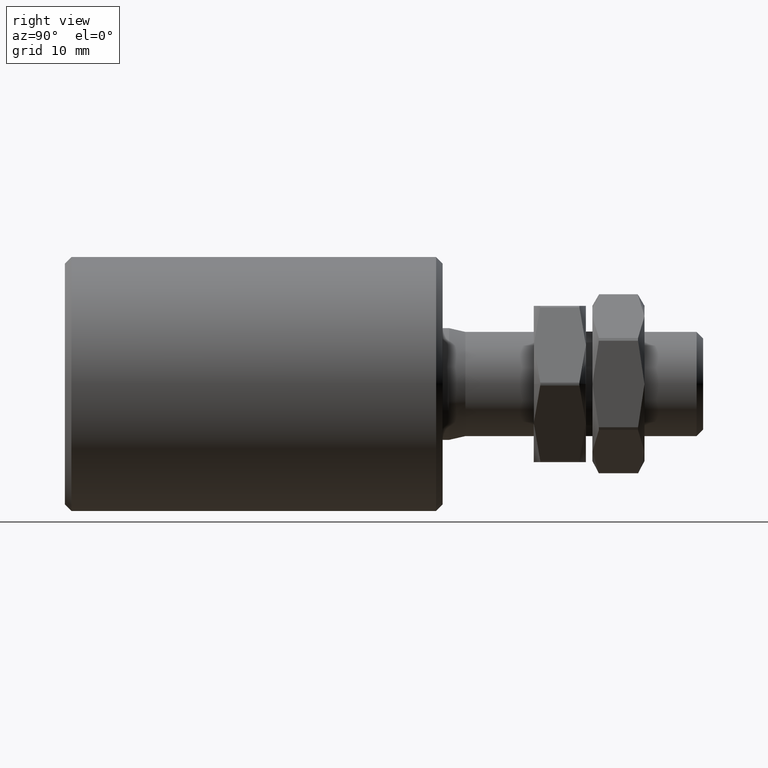
[diagram: clean part render]
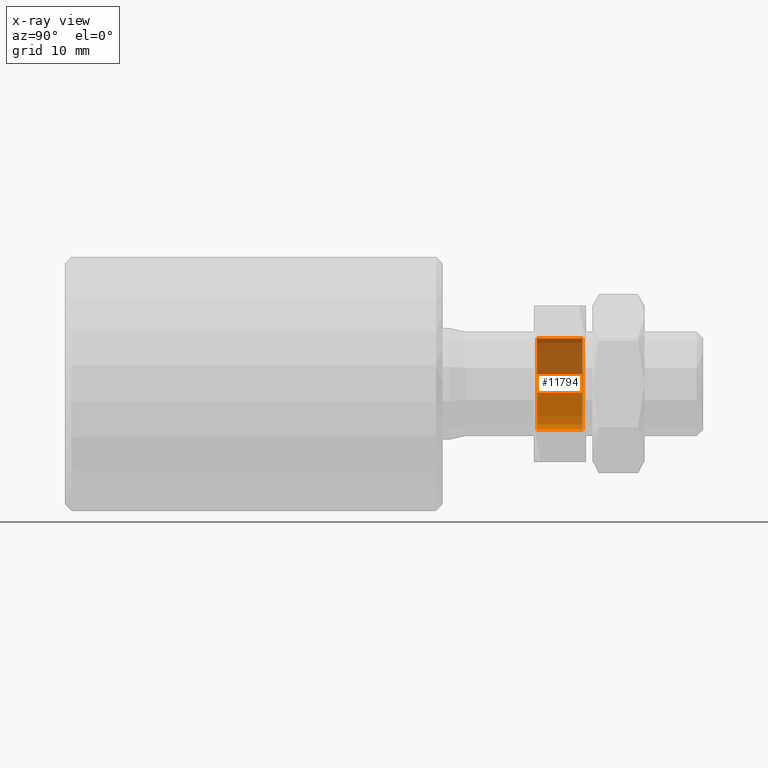
[diagram: x-ray — body ghosted, one internal face saturated and labeled with its STEP entity id]
A machine part, right view, then the same camera in x-ray: the body is ghosted and one INTERNAL B-rep face — a face not visible from any outside direction — is saturated and labeled: STEP entity #11794.
In plain terms, the highlighted cylindrical surface (partial cylindrical patch) has radius 7 mm, axis along (0, 1, 0).
Its self-contained STEP definition (entity closure, byte-faithful):
#305 = LINE ( 'NONE', #5829, #7582 ) ;
#335 = VECTOR ( 'NONE', #2855, 1000.000000000000000 ) ;
#653 = ORIENTED_EDGE ( 'NONE', *, *, #11603, .T. ) ;
#790 = AXIS2_PLACEMENT_3D ( 'NONE', #13262, #14859, #5972 ) ;
#869 = CARTESIAN_POINT ( 'NONE',  ( 0.000000000000000000, 3.500000000000000444, 7.000000000000000000 ) ) ;
#2114 = EDGE_CURVE ( 'NONE', #3408, #3210, #7398, .T. ) ;
#2279 = VERTEX_POINT ( 'NONE', #13587 ) ;
#2855 = DIRECTION ( 'NONE',  ( -0.000000000000000000, 1.000000000000000000, -0.000000000000000000 ) ) ;
#3210 = VERTEX_POINT ( 'NONE', #869 ) ;
#3407 = CIRCLE ( 'NONE', #790, 7.000000000000000000 ) ;
#3408 = VERTEX_POINT ( 'NONE', #7617 ) ;
#4662 = DIRECTION ( 'NONE',  ( -0.000000000000000000, 1.000000000000000000, -0.000000000000000000 ) ) ;
#5758 = ORIENTED_EDGE ( 'NONE', *, *, #13754, .F. ) ;
#5829 = CARTESIAN_POINT ( 'NONE',  ( 0.000000000000000000, 4.000000000000000000, 7.000000000000000000 ) ) ;
#5972 = DIRECTION ( 'NONE',  ( 0.000000000000000000, 0.000000000000000000, 1.000000000000000000 ) ) ;
#6713 = ORIENTED_EDGE ( 'NONE', *, *, #2114, .T. ) ;
#6932 = EDGE_CURVE ( 'NONE', #10618, #2279, #3407, .T. ) ;
#6950 = CARTESIAN_POINT ( 'NONE',  ( 0.000000000000000000, 4.000000000000000000, 0.000000000000000000 ) ) ;
#7021 = CARTESIAN_POINT ( 'NONE',  ( 0.000000000000000000, 3.500000000000000444, 0.000000000000000000 ) ) ;
#7069 = CYLINDRICAL_SURFACE ( 'NONE', #14786, 7.000000000000000000 ) ;
#7398 = CIRCLE ( 'NONE', #7733, 7.000000000000000000 ) ;
#7582 = VECTOR ( 'NONE', #4662, 1000.000000000000000 ) ;
#7600 = FACE_OUTER_BOUND ( 'NONE', #10651, .T. ) ;
#7617 = CARTESIAN_POINT ( 'NONE',  ( 8.572527594031473190E-16, 3.500000000000000444, -7.000000000000000000 ) ) ;
#7733 = AXIS2_PLACEMENT_3D ( 'NONE', #7021, #10303, #12736 ) ;
#8131 = DIRECTION ( 'NONE',  ( 0.000000000000000000, 0.000000000000000000, 1.000000000000000000 ) ) ;
#9097 = ORIENTED_EDGE ( 'NONE', *, *, #6932, .T. ) ;
#10303 = DIRECTION ( 'NONE',  ( 0.000000000000000000, 1.000000000000000000, 0.000000000000000000 ) ) ;
#10618 = VERTEX_POINT ( 'NONE', #15429 ) ;
#10651 = EDGE_LOOP ( 'NONE', ( #9097, #653, #6713, #5758 ) ) ;
#11534 = LINE ( 'NONE', #12334, #335 ) ;
#11603 = EDGE_CURVE ( 'NONE', #2279, #3408, #11534, .T. ) ;
#11794 = ADVANCED_FACE ( 'NONE', ( #7600 ), #7069, .F. ) ;
#12334 = CARTESIAN_POINT ( 'NONE',  ( 8.572527594031473190E-16, 4.000000000000000000, -7.000000000000000000 ) ) ;
#12736 = DIRECTION ( 'NONE',  ( 0.000000000000000000, 0.000000000000000000, 1.000000000000000000 ) ) ;
#13262 = CARTESIAN_POINT ( 'NONE',  ( 0.000000000000000000, -3.499999999999993783, 0.000000000000000000 ) ) ;
#13587 = CARTESIAN_POINT ( 'NONE',  ( 8.572527594031473190E-16, -3.499999999999993783, -7.000000000000000000 ) ) ;
#13754 = EDGE_CURVE ( 'NONE', #10618, #3210, #305, .T. ) ;
#14786 = AXIS2_PLACEMENT_3D ( 'NONE', #6950, #15250, #8131 ) ;
#14859 = DIRECTION ( 'NONE',  ( -0.000000000000000000, -1.000000000000000000, -0.000000000000000000 ) ) ;
#15250 = DIRECTION ( 'NONE',  ( -0.000000000000000000, 1.000000000000000000, -0.000000000000000000 ) ) ;
#15429 = CARTESIAN_POINT ( 'NONE',  ( 0.000000000000000000, -3.499999999999993783, 7.000000000000000000 ) ) ;